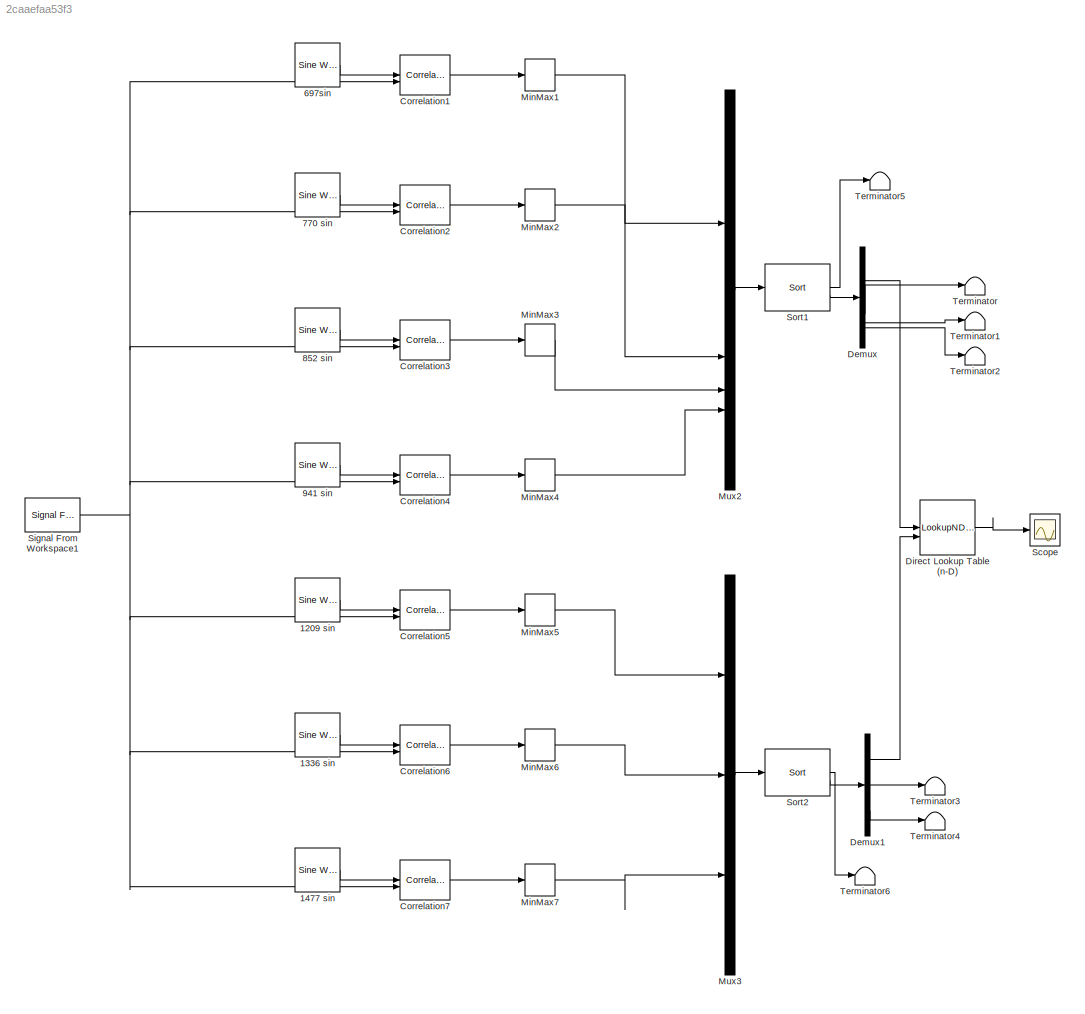
MODEL slx_2caaefaa53f3
KIND model
CONFIG AbsTol = auto
CONFIG EnableMultiTasking = off
CONFIG FixedStep = auto
CONFIG MaxStep = auto
CONFIG MinStep = auto
CONFIG PreLoadFcn = load dspafxr;
CONFIG RelTol = 1e-3
CONFIG SampleTimeConstraint = Unconstrained
CONFIG SolverName = FixedStepDiscrete
CONFIG StartTime = 0.0
CONFIG StopTime = 5.5
BLOCK [Reference] 1209 sin  REF=dspsrcs4/Sine Wave
  SourceBlock = dspsrcs4/Sine Wave
  SourceType = Sine Wave
BLOCK [Reference] 1336 sin  REF=dspsrcs4/Sine Wave
  SourceBlock = dspsrcs4/Sine Wave
  SourceType = Sine Wave
BLOCK [Reference] 1477 sin  REF=dspsrcs4/Sine Wave
  SourceBlock = dspsrcs4/Sine Wave
  SourceType = Sine Wave
BLOCK [Reference] 697sin  REF=dspsrcs4/Sine Wave
  SourceBlock = dspsrcs4/Sine Wave
  SourceType = Sine Wave
BLOCK [Reference] 770 sin  REF=dspsrcs4/Sine Wave
  SourceBlock = dspsrcs4/Sine Wave
  SourceType = Sine Wave
BLOCK [Reference] 852 sin  REF=dspsrcs4/Sine Wave
  SourceBlock = dspsrcs4/Sine Wave
  SourceType = Sine Wave
BLOCK [Reference] 941 sin  REF=dspsrcs4/Sine Wave
  SourceBlock = dspsrcs4/Sine Wave
  SourceType = Sine Wave
BLOCK [Reference] Correlation1  REF=dspstat3/Correlation
  SourceBlock = dspstat3/Correlation
  SourceType = Correlation
BLOCK [Reference] Correlation2  REF=dspstat3/Correlation
  SourceBlock = dspstat3/Correlation
  SourceType = Correlation
BLOCK [Reference] Correlation3  REF=dspstat3/Correlation
  SourceBlock = dspstat3/Correlation
  SourceType = Correlation
BLOCK [Reference] Correlation4  REF=dspstat3/Correlation
  SourceBlock = dspstat3/Correlation
  SourceType = Correlation
BLOCK [Reference] Correlation5  REF=dspstat3/Correlation
  SourceBlock = dspstat3/Correlation
  SourceType = Correlation
BLOCK [Reference] Correlation6  REF=dspstat3/Correlation
  SourceBlock = dspstat3/Correlation
  SourceType = Correlation
BLOCK [Reference] Correlation7  REF=dspstat3/Correlation
  SourceBlock = dspstat3/Correlation
  SourceType = Correlation
BLOCK [Demux] Demux
BLOCK [Demux] Demux1
  Outputs = 3
BLOCK [LookupNDDirect] Direct Lookup Table (n-D)
  Table = [0 0 0 0;0 1 2 3; 0 4 5 6; 0 7 8 9; 0 0 0 0]
BLOCK [MinMax] MinMax1
  Function = max
BLOCK [MinMax] MinMax2
  Function = max
BLOCK [MinMax] MinMax3
  Function = max
BLOCK [MinMax] MinMax4
  Function = max
BLOCK [MinMax] MinMax5
  Function = max
BLOCK [MinMax] MinMax6
  Function = max
BLOCK [MinMax] MinMax7
  Function = max
BLOCK [Mux] Mux2
BLOCK [Mux] Mux3
  Inputs = 3
BLOCK [Scope] Scope
  Floating = off
  NumInputPorts = 3
  ScopeSpecificationString = Simulink.scopes.TimeScopeBlockCfg('CurrentConfiguration', extmgr.ConfigurationSet(extmgr.Configuration('Core','General UI',true),extmgr.Configuration('Core','Source UI',true),extmgr.Configuration('Sources','WiredSimulink',true),extmgr.Configuration('Visuals','Time Domain',true,'SerializedDisplays',{struct('MinYLimReal','-1.125','MaxYLimReal','10.125','YLabelReal','','MinYLimMag','0.00000','MaxYLim...<+1479ch>
BLOCK [Reference] Signal From Workspace1  REF=dspsrcs4/Signal From
Workspace
  SourceBlock = dspsrcs4/Signal From\nWorkspace
  SourceType = Signal From Workspace
BLOCK [Reference] Sort1  REF=dspstat3/Sort
  SourceBlock = dspstat3/Sort
  SourceType = Sort
BLOCK [Reference] Sort2  REF=dspstat3/Sort
  SourceBlock = dspstat3/Sort
  SourceType = Sort
BLOCK [Terminator] Terminator
BLOCK [Terminator] Terminator1
BLOCK [Terminator] Terminator2
BLOCK [Terminator] Terminator3
BLOCK [Terminator] Terminator4
BLOCK [Terminator] Terminator5
BLOCK [Terminator] Terminator6
LINE 1209 sin:1 -> Correlation5:1
LINE 1336 sin:1 -> Correlation6:1
LINE 1477 sin:1 -> Correlation7:1
LINE 697sin:1 -> Correlation1:1
LINE 770 sin:1 -> Correlation2:1
LINE 852 sin:1 -> Correlation3:1
LINE 941 sin:1 -> Correlation4:1
LINE Correlation1:1 -> MinMax1:1
LINE Correlation2:1 -> MinMax2:1
LINE Correlation3:1 -> MinMax3:1
LINE Correlation4:1 -> MinMax4:1
LINE Correlation5:1 -> MinMax5:1
LINE Correlation6:1 -> MinMax6:1
LINE Correlation7:1 -> MinMax7:1
LINE Demux1:1 -> Direct Lookup Table (n-D):2
LINE Demux1:2 -> Terminator3:1
LINE Demux1:3 -> Terminator4:1
LINE Demux:1 -> Direct Lookup Table (n-D):1
LINE Demux:2 -> Terminator:1
LINE Demux:3 -> Terminator1:1
LINE Demux:4 -> Terminator2:1
LINE Direct Lookup Table (n-D):1 -> Scope:1
LINE MinMax1:1 -> Mux2:1
LINE MinMax2:1 -> Mux2:2
LINE MinMax3:1 -> Mux2:3
LINE MinMax4:1 -> Mux2:4
LINE MinMax5:1 -> Mux3:1
LINE MinMax6:1 -> Mux3:2
LINE MinMax7:1 -> Mux3:3
LINE Mux2:1 -> Sort1:1
LINE Mux3:1 -> Sort2:1
NET Signal From Workspace1:1 -> Correlation1:2, Correlation2:2, Correlation3:2, Correlation4:2, Correlation5:2, Correlation6:2, Correlation7:2
LINE Sort1:1 -> Terminator5:1
LINE Sort1:2 -> Demux:1
LINE Sort2:1 -> Terminator6:1
LINE Sort2:2 -> Demux1:1
note: NET lines group one-source signal fan-out (src -> all destinations, sorted); 1:1 wires keep LINE
